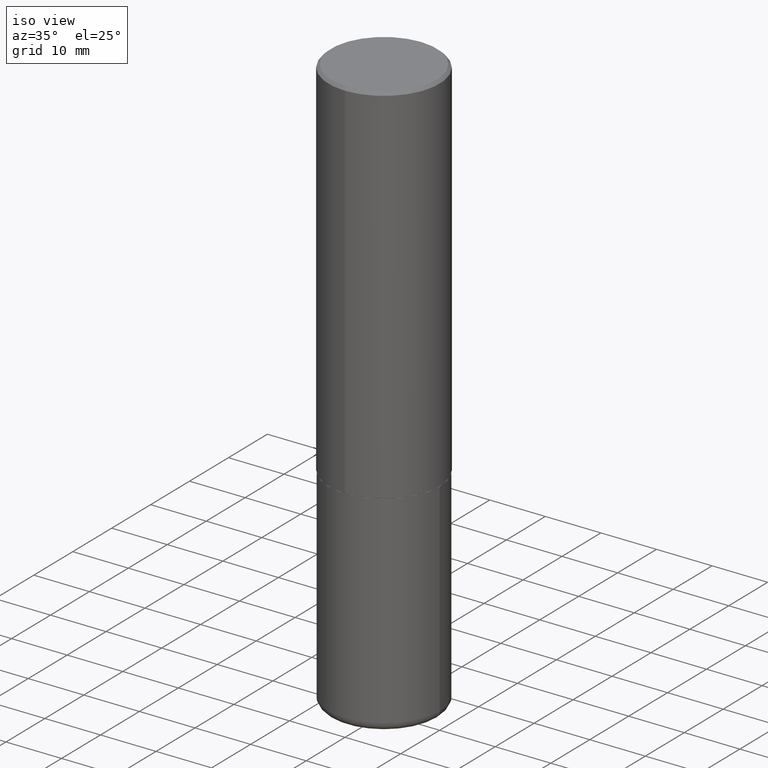
[diagram: clean part render]
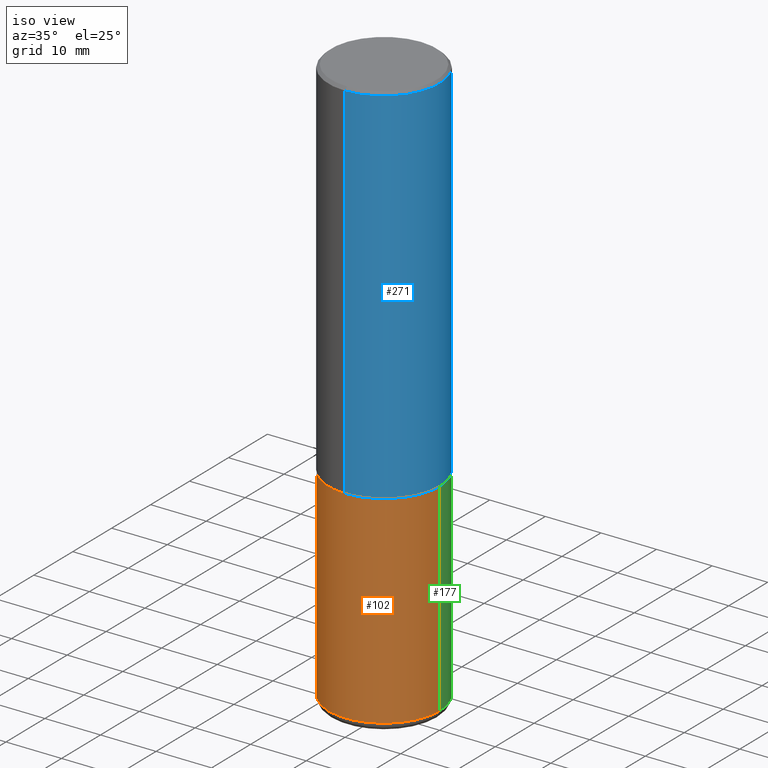
[diagram: same view with three faces highlighted in distinct colors, each labeled with its STEP entity id]
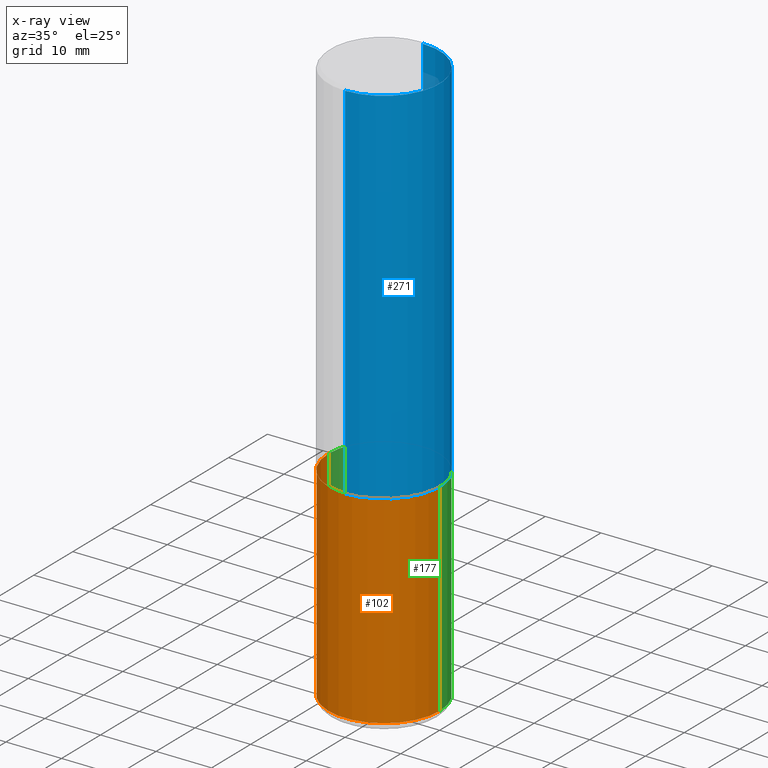
[diagram: x-ray of the same camera — body ghosted, the three highlighted faces saturated]
A machine part, iso view with three faces highlighted in distinct colors.
The next image is the same camera in x-ray (body ghosted, the three faces saturated) — at least one of them is partly hidden behind the body in this view.
Their STEP definitions:

[orange] entity #102 — the highlighted cylindrical surface (partial cylindrical patch) has radius 10 mm, axis along (-0, 0, 1).
#3 = VERTEX_POINT ( 'NONE', #144 ) ;
#26 = CARTESIAN_POINT ( 'NONE',  ( -0.3936999999999999389, -1.129211704408011394E-14, -4.035400000000000098 ) ) ;
#37 = EDGE_CURVE ( 'NONE', #362, #129, #205, .T. ) ;
#49 = CARTESIAN_POINT ( 'NONE',  ( 9.868444820479501934E-29, -1.408952379476762952E-14, -4.035400000000000098 ) ) ;
#58 = CYLINDRICAL_SURFACE ( 'NONE', #314, 0.3936999999999999389 ) ;
#79 = CARTESIAN_POINT ( 'NONE',  ( -0.3937000000000000499, -8.783487702121316283E-15, -2.598400000000000265 ) ) ;
#85 = DIRECTION ( 'NONE',  ( -2.445468806185136597E-29, 3.491481338843145583E-15, 1.000000000000000000 ) ) ;
#102 = ADVANCED_FACE ( 'NONE', ( #123 ), #58, .T. ) ;
#117 = ORIENTED_EDGE ( 'NONE', *, *, #37, .F. ) ;
#118 = CARTESIAN_POINT ( 'NONE',  ( 0.3936999999999999389, -2.749192406205082822E-15, 1.919750796630859611E-29 ) ) ;
#123 = FACE_OUTER_BOUND ( 'NONE', #247, .T. ) ;
#124 = CIRCLE ( 'NONE', #261, 0.3936999999999999389 ) ;
#129 = VERTEX_POINT ( 'NONE', #409 ) ;
#144 = CARTESIAN_POINT ( 'NONE',  ( 0.3936999999999999389, -1.683871620097271431E-14, -4.035400000000000098 ) ) ;
#153 = DIRECTION ( 'NONE',  ( -2.445468806185136597E-29, 3.491481338843145583E-15, 1.000000000000000000 ) ) ;
#155 = LINE ( 'NONE', #375, #280 ) ;
#173 = VERTEX_POINT ( 'NONE', #26 ) ;
#198 = DIRECTION ( 'NONE',  ( 1.000000000000000000, -6.982962677686266711E-15, 4.876176775795935793E-29 ) ) ;
#202 = DIRECTION ( 'NONE',  ( 1.000000000000000000, -6.982962677686269866E-15, 0.000000000000000000 ) ) ;
#205 = CIRCLE ( 'NONE', #269, 0.3937000000000000499 ) ;
#211 = ORIENTED_EDGE ( 'NONE', *, *, #396, .T. ) ;
#244 = DIRECTION ( 'NONE',  ( -2.445468806185136877E-29, 3.491481338843145188E-15, 1.000000000000000000 ) ) ;
#247 = EDGE_LOOP ( 'NONE', ( #333, #211, #374, #117 ) ) ;
#254 = DIRECTION ( 'NONE',  ( -2.445468806185136597E-29, 3.491481338843145583E-15, 1.000000000000000000 ) ) ;
#261 = AXIS2_PLACEMENT_3D ( 'NONE', #49, #153, #202 ) ;
#268 = EDGE_CURVE ( 'NONE', #173, #362, #155, .T. ) ;
#269 = AXIS2_PLACEMENT_3D ( 'NONE', #276, #85, #344 ) ;
#276 = CARTESIAN_POINT ( 'NONE',  ( 6.354306145991459756E-29, -9.072265110850031044E-15, -2.598400000000000265 ) ) ;
#280 = VECTOR ( 'NONE', #313, 39.37007874015748143 ) ;
#313 = DIRECTION ( 'NONE',  ( -2.445468806185136877E-29, 3.491481338843145188E-15, 1.000000000000000000 ) ) ;
#314 = AXIS2_PLACEMENT_3D ( 'NONE', #326, #254, #198 ) ;
#326 = CARTESIAN_POINT ( 'NONE',  ( 0.000000000000000000, 0.000000000000000000, 0.000000000000000000 ) ) ;
#331 = VECTOR ( 'NONE', #244, 39.37007874015748143 ) ;
#333 = ORIENTED_EDGE ( 'NONE', *, *, #268, .F. ) ;
#334 = EDGE_CURVE ( 'NONE', #3, #129, #400, .T. ) ;
#344 = DIRECTION ( 'NONE',  ( 1.000000000000000000, -6.982962677686267499E-15, 0.000000000000000000 ) ) ;
#362 = VERTEX_POINT ( 'NONE', #79 ) ;
#374 = ORIENTED_EDGE ( 'NONE', *, *, #334, .T. ) ;
#375 = CARTESIAN_POINT ( 'NONE',  ( -0.3936999999999999389, 2.797406750687513998E-15, -1.936584745033356455E-29 ) ) ;
#396 = EDGE_CURVE ( 'NONE', #173, #3, #124, .T. ) ;
#400 = LINE ( 'NONE', #118, #331 ) ;
#409 = CARTESIAN_POINT ( 'NONE',  ( 0.3937000000000000499, -1.182145751705511584E-14, -2.598400000000000265 ) ) ;

[blue] entity #271 — the highlighted cylindrical surface (partial cylindrical patch) has radius 10 mm, axis along (-0, 0, 1).
#7 = EDGE_LOOP ( 'NONE', ( #38, #43, #305, #175 ) ) ;
#28 = CARTESIAN_POINT ( 'NONE',  ( 2.797406750687514786E-15, 0.3937000000000001054, -1.375009401077903823E-15 ) ) ;
#34 = LINE ( 'NONE', #381, #255 ) ;
#38 = ORIENTED_EDGE ( 'NONE', *, *, #176, .T. ) ;
#43 = ORIENTED_EDGE ( 'NONE', *, *, #99, .T. ) ;
#53 = FACE_OUTER_BOUND ( 'NONE', #7, .T. ) ;
#86 = AXIS2_PLACEMENT_3D ( 'NONE', #181, #147, #278 ) ;
#90 = DIRECTION ( 'NONE',  ( -2.444735926825112369E-29, 3.492530863799602802E-15, 1.000000000000000000 ) ) ;
#94 = AXIS2_PLACEMENT_3D ( 'NONE', #162, #90, #262 ) ;
#97 = VECTOR ( 'NONE', #346, 39.37007874015748143 ) ;
#99 = EDGE_CURVE ( 'NONE', #359, #310, #319, .T. ) ;
#113 = CARTESIAN_POINT ( 'NONE',  ( 2.749192406205082822E-15, 0.3936999999999998834, -0.02000000000000146105 ) ) ;
#120 = CYLINDRICAL_SURFACE ( 'NONE', #151, 0.3937000000000001054 ) ;
#122 = DIRECTION ( 'NONE',  ( -2.444735926825112369E-29, 3.492530863799602802E-15, 1.000000000000000000 ) ) ;
#137 = EDGE_CURVE ( 'NONE', #178, #189, #34, .T. ) ;
#138 = CIRCLE ( 'NONE', #86, 0.3936999999999999389 ) ;
#147 = DIRECTION ( 'NONE',  ( -2.444735926825112369E-29, 3.492530863799602802E-15, 1.000000000000000000 ) ) ;
#151 = AXIS2_PLACEMENT_3D ( 'NONE', #408, #122, #404 ) ;
#162 = CARTESIAN_POINT ( 'NONE',  ( 6.349957096335548913E-29, -9.071499665633090901E-15, -2.597400000000000375 ) ) ;
#175 = ORIENTED_EDGE ( 'NONE', *, *, #137, .F. ) ;
#176 = EDGE_CURVE ( 'NONE', #178, #359, #273, .T. ) ;
#178 = VERTEX_POINT ( 'NONE', #414 ) ;
#181 = CARTESIAN_POINT ( 'NONE',  ( 4.889471853650246808E-31, -6.985061727599234890E-17, -0.02000000000000008715 ) ) ;
#183 = CARTESIAN_POINT ( 'NONE',  ( 2.797406750687547919E-15, 0.3936999999999912792, -2.597400000000002152 ) ) ;
#189 = VERTEX_POINT ( 'NONE', #348 ) ;
#255 = VECTOR ( 'NONE', #290, 39.37007874015748143 ) ;
#262 = DIRECTION ( 'NONE',  ( -6.982962677686265922E-15, -1.000000000000000000, 4.163344669033672479E-15 ) ) ;
#271 = ADVANCED_FACE ( 'NONE', ( #53 ), #120, .T. ) ;
#273 = CIRCLE ( 'NONE', #94, 0.3937000000000002720 ) ;
#278 = DIRECTION ( 'NONE',  ( -6.982962677686265922E-15, -1.000000000000000000, 3.491137977679280212E-15 ) ) ;
#290 = DIRECTION ( 'NONE',  ( -2.444735926825112649E-29, 3.492530863799602802E-15, 1.000000000000000000 ) ) ;
#305 = ORIENTED_EDGE ( 'NONE', *, *, #328, .F. ) ;
#310 = VERTEX_POINT ( 'NONE', #113 ) ;
#319 = LINE ( 'NONE', #28, #97 ) ;
#328 = EDGE_CURVE ( 'NONE', #189, #310, #138, .T. ) ;
#346 = DIRECTION ( 'NONE',  ( -2.444735926825112649E-29, 3.492530863799602802E-15, 1.000000000000000000 ) ) ;
#348 = CARTESIAN_POINT ( 'NONE',  ( -2.700978061722650858E-15, -0.3937000000000000499, -0.01999999999999870978 ) ) ;
#359 = VERTEX_POINT ( 'NONE', #183 ) ;
#381 = CARTESIAN_POINT ( 'NONE',  ( -2.749192406205083217E-15, -0.3937000000000001054, 1.375009401077903823E-15 ) ) ;
#404 = DIRECTION ( 'NONE',  ( -6.982962677686265133E-15, -1.000000000000000000, 3.492530863799602407E-15 ) ) ;
#408 = CARTESIAN_POINT ( 'NONE',  ( 0.000000000000000000, 0.000000000000000000, 0.000000000000000000 ) ) ;
#414 = CARTESIAN_POINT ( 'NONE',  ( -2.749192406205021291E-15, -0.3937000000000093758, -2.597399999999999043 ) ) ;

[green] entity #177 — the highlighted cylindrical surface (partial cylindrical patch) has radius 10 mm, axis along (-0, 0, 1).
#3 = VERTEX_POINT ( 'NONE', #144 ) ;
#23 = EDGE_CURVE ( 'NONE', #129, #362, #371, .T. ) ;
#26 = CARTESIAN_POINT ( 'NONE',  ( -0.3936999999999999389, -1.129211704408011394E-14, -4.035400000000000098 ) ) ;
#50 = ORIENTED_EDGE ( 'NONE', *, *, #23, .F. ) ;
#55 = CARTESIAN_POINT ( 'NONE',  ( 9.868444820479501934E-29, -1.408952379476762952E-14, -4.035400000000000098 ) ) ;
#79 = CARTESIAN_POINT ( 'NONE',  ( -0.3937000000000000499, -8.783487702121316283E-15, -2.598400000000000265 ) ) ;
#82 = ORIENTED_EDGE ( 'NONE', *, *, #334, .F. ) ;
#84 = DIRECTION ( 'NONE',  ( 1.000000000000000000, -6.982962677686269866E-15, 0.000000000000000000 ) ) ;
#118 = CARTESIAN_POINT ( 'NONE',  ( 0.3936999999999999389, -2.749192406205082822E-15, 1.919750796630859611E-29 ) ) ;
#129 = VERTEX_POINT ( 'NONE', #409 ) ;
#142 = EDGE_LOOP ( 'NONE', ( #270, #300, #50, #82 ) ) ;
#144 = CARTESIAN_POINT ( 'NONE',  ( 0.3936999999999999389, -1.683871620097271431E-14, -4.035400000000000098 ) ) ;
#146 = DIRECTION ( 'NONE',  ( 1.000000000000000000, -6.982962677686267499E-15, 0.000000000000000000 ) ) ;
#155 = LINE ( 'NONE', #375, #280 ) ;
#159 = CARTESIAN_POINT ( 'NONE',  ( 0.000000000000000000, 0.000000000000000000, 0.000000000000000000 ) ) ;
#173 = VERTEX_POINT ( 'NONE', #26 ) ;
#177 = ADVANCED_FACE ( 'NONE', ( #221 ), #257, .T. ) ;
#219 = AXIS2_PLACEMENT_3D ( 'NONE', #367, #242, #146 ) ;
#221 = FACE_OUTER_BOUND ( 'NONE', #142, .T. ) ;
#223 = DIRECTION ( 'NONE',  ( 1.000000000000000000, -6.982962677686266711E-15, 4.876176775795935793E-29 ) ) ;
#242 = DIRECTION ( 'NONE',  ( -2.445468806185136597E-29, 3.491481338843145583E-15, 1.000000000000000000 ) ) ;
#244 = DIRECTION ( 'NONE',  ( -2.445468806185136877E-29, 3.491481338843145188E-15, 1.000000000000000000 ) ) ;
#257 = CYLINDRICAL_SURFACE ( 'NONE', #289, 0.3936999999999999389 ) ;
#268 = EDGE_CURVE ( 'NONE', #173, #362, #155, .T. ) ;
#270 = ORIENTED_EDGE ( 'NONE', *, *, #304, .T. ) ;
#280 = VECTOR ( 'NONE', #313, 39.37007874015748143 ) ;
#289 = AXIS2_PLACEMENT_3D ( 'NONE', #159, #291, #223 ) ;
#291 = DIRECTION ( 'NONE',  ( -2.445468806185136597E-29, 3.491481338843145583E-15, 1.000000000000000000 ) ) ;
#300 = ORIENTED_EDGE ( 'NONE', *, *, #268, .T. ) ;
#304 = EDGE_CURVE ( 'NONE', #3, #173, #321, .T. ) ;
#313 = DIRECTION ( 'NONE',  ( -2.445468806185136877E-29, 3.491481338843145188E-15, 1.000000000000000000 ) ) ;
#321 = CIRCLE ( 'NONE', #357, 0.3936999999999999389 ) ;
#331 = VECTOR ( 'NONE', #244, 39.37007874015748143 ) ;
#334 = EDGE_CURVE ( 'NONE', #3, #129, #400, .T. ) ;
#357 = AXIS2_PLACEMENT_3D ( 'NONE', #55, #398, #84 ) ;
#362 = VERTEX_POINT ( 'NONE', #79 ) ;
#367 = CARTESIAN_POINT ( 'NONE',  ( 6.354306145991459756E-29, -9.072265110850031044E-15, -2.598400000000000265 ) ) ;
#371 = CIRCLE ( 'NONE', #219, 0.3937000000000000499 ) ;
#375 = CARTESIAN_POINT ( 'NONE',  ( -0.3936999999999999389, 2.797406750687513998E-15, -1.936584745033356455E-29 ) ) ;
#398 = DIRECTION ( 'NONE',  ( -2.445468806185136597E-29, 3.491481338843145583E-15, 1.000000000000000000 ) ) ;
#400 = LINE ( 'NONE', #118, #331 ) ;
#409 = CARTESIAN_POINT ( 'NONE',  ( 0.3937000000000000499, -1.182145751705511584E-14, -2.598400000000000265 ) ) ;